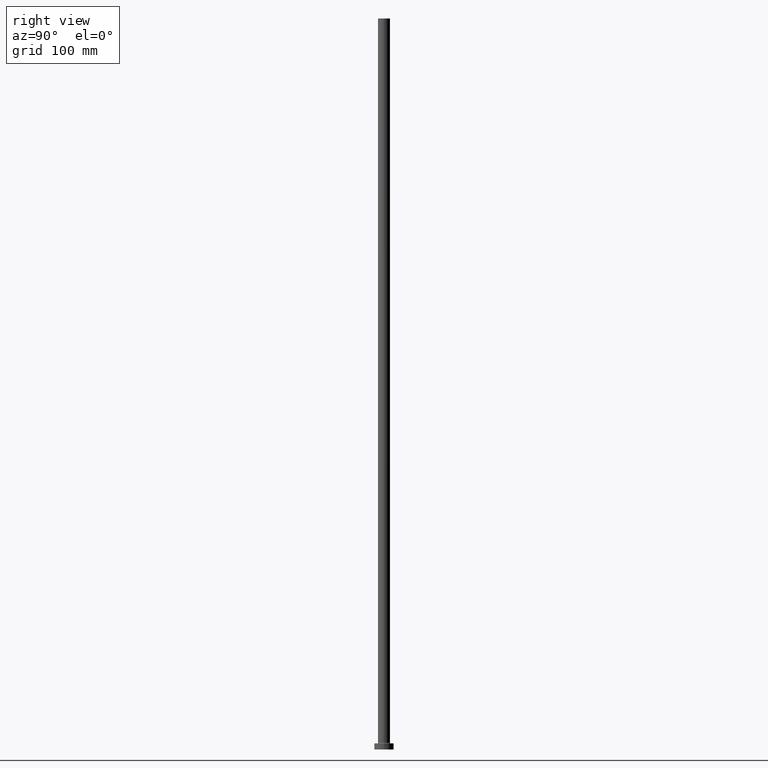
[diagram: clean part render]
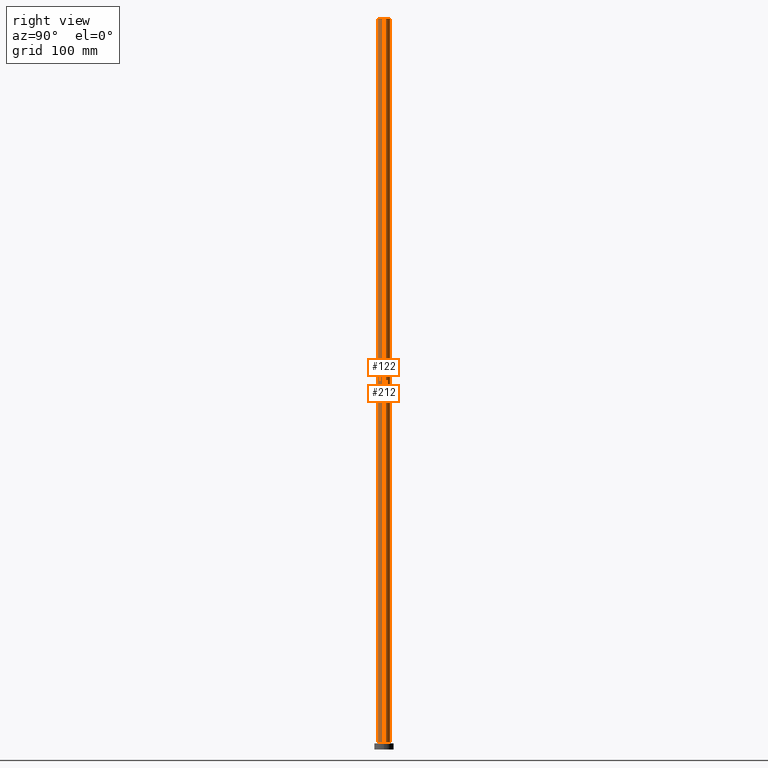
[diagram: same view with one multi-face feature highlighted, each face labeled with its STEP entity id]
A machine part, right view. The highlighted faces form ONE feature: a constant-radius fillet chain: 2 tangent blend faces with common blend radius 5 mm. The faces share edges in the B-rep.
Their STEP definitions:
[1] entity #212 (Cylinder):
#15 = DIRECTION ( 'NONE',  ( -1.000000000000000000, 0.000000000000000000, 0.000000000000000000 ) ) ;
#39 = CARTESIAN_POINT ( 'NONE',  ( 0.000000000000000000, 0.000000000000000000, 600.0000000000000000 ) ) ;
#41 = VERTEX_POINT ( 'NONE', #263 ) ;
#42 = LINE ( 'NONE', #180, #294 ) ;
#43 = LINE ( 'NONE', #432, #228 ) ;
#45 = EDGE_CURVE ( 'NONE', #41, #96, #170, .T. ) ;
#52 = CARTESIAN_POINT ( 'NONE',  ( 0.000000000000000000, 0.000000000000000000, 600.0000000000000000 ) ) ;
#63 = EDGE_LOOP ( 'NONE', ( #331, #343, #130, #255 ) ) ;
#81 = AXIS2_PLACEMENT_3D ( 'NONE', #39, #146, #425 ) ;
#88 = CYLINDRICAL_SURFACE ( 'NONE', #116, 5.000000000000000000 ) ;
#90 = EDGE_CURVE ( 'NONE', #207, #41, #43, .T. ) ;
#96 = VERTEX_POINT ( 'NONE', #297 ) ;
#116 = AXIS2_PLACEMENT_3D ( 'NONE', #52, #332, #15 ) ;
#125 = DIRECTION ( 'NONE',  ( 0.000000000000000000, 0.000000000000000000, 1.000000000000000000 ) ) ;
#130 = ORIENTED_EDGE ( 'NONE', *, *, #45, .T. ) ;
#146 = DIRECTION ( 'NONE',  ( 0.000000000000000000, 0.000000000000000000, 1.000000000000000000 ) ) ;
#158 = DIRECTION ( 'NONE',  ( -0.000000000000000000, -0.000000000000000000, -1.000000000000000000 ) ) ;
#170 = CIRCLE ( 'NONE', #346, 5.000000000000000000 ) ;
#180 = CARTESIAN_POINT ( 'NONE',  ( -5.000000000000000000, 0.000000000000000000, 600.0000000000000000 ) ) ;
#185 = CARTESIAN_POINT ( 'NONE',  ( 0.000000000000000000, 0.000000000000000000, 5.499999999999949374 ) ) ;
#207 = VERTEX_POINT ( 'NONE', #265 ) ;
#212 = ADVANCED_FACE ( 'NONE', ( #401 ), #88, .T. ) ;
#228 = VECTOR ( 'NONE', #158, 1000.000000000000000 ) ;
#255 = ORIENTED_EDGE ( 'NONE', *, *, #427, .F. ) ;
#260 = DIRECTION ( 'NONE',  ( 1.000000000000000000, 0.000000000000000000, 0.000000000000000000 ) ) ;
#263 = CARTESIAN_POINT ( 'NONE',  ( 5.000000000000000000, 6.123233995736766282E-16, 5.499999999999949374 ) ) ;
#265 = CARTESIAN_POINT ( 'NONE',  ( 5.000000000000000000, 6.123233995736766282E-16, 600.0000000000000000 ) ) ;
#268 = EDGE_CURVE ( 'NONE', #207, #339, #310, .T. ) ;
#294 = VECTOR ( 'NONE', #392, 1000.000000000000000 ) ;
#297 = CARTESIAN_POINT ( 'NONE',  ( -5.000000000000000000, 0.000000000000000000, 5.499999999999949374 ) ) ;
#310 = CIRCLE ( 'NONE', #81, 5.000000000000000000 ) ;
#331 = ORIENTED_EDGE ( 'NONE', *, *, #268, .F. ) ;
#332 = DIRECTION ( 'NONE',  ( -0.000000000000000000, -0.000000000000000000, -1.000000000000000000 ) ) ;
#339 = VERTEX_POINT ( 'NONE', #400 ) ;
#343 = ORIENTED_EDGE ( 'NONE', *, *, #90, .T. ) ;
#346 = AXIS2_PLACEMENT_3D ( 'NONE', #185, #125, #260 ) ;
#392 = DIRECTION ( 'NONE',  ( -0.000000000000000000, -0.000000000000000000, -1.000000000000000000 ) ) ;
#400 = CARTESIAN_POINT ( 'NONE',  ( -5.000000000000000000, 0.000000000000000000, 600.0000000000000000 ) ) ;
#401 = FACE_OUTER_BOUND ( 'NONE', #63, .T. ) ;
#425 = DIRECTION ( 'NONE',  ( 1.000000000000000000, 0.000000000000000000, 0.000000000000000000 ) ) ;
#427 = EDGE_CURVE ( 'NONE', #339, #96, #42, .T. ) ;
#432 = CARTESIAN_POINT ( 'NONE',  ( 5.000000000000000000, 6.123233995736766282E-16, 600.0000000000000000 ) ) ;
[2] entity #122 (Cylinder):
#17 = EDGE_CURVE ( 'NONE', #339, #207, #354, .T. ) ;
#32 = DIRECTION ( 'NONE',  ( -1.000000000000000000, 0.000000000000000000, 0.000000000000000000 ) ) ;
#41 = VERTEX_POINT ( 'NONE', #263 ) ;
#42 = LINE ( 'NONE', #180, #294 ) ;
#43 = LINE ( 'NONE', #432, #228 ) ;
#46 = AXIS2_PLACEMENT_3D ( 'NONE', #237, #213, #32 ) ;
#86 = EDGE_CURVE ( 'NONE', #96, #41, #406, .T. ) ;
#90 = EDGE_CURVE ( 'NONE', #207, #41, #43, .T. ) ;
#96 = VERTEX_POINT ( 'NONE', #297 ) ;
#102 = CARTESIAN_POINT ( 'NONE',  ( 0.000000000000000000, 0.000000000000000000, 600.0000000000000000 ) ) ;
#122 = ADVANCED_FACE ( 'NONE', ( #234 ), #451, .T. ) ;
#127 = AXIS2_PLACEMENT_3D ( 'NONE', #442, #304, #399 ) ;
#158 = DIRECTION ( 'NONE',  ( -0.000000000000000000, -0.000000000000000000, -1.000000000000000000 ) ) ;
#179 = ORIENTED_EDGE ( 'NONE', *, *, #90, .F. ) ;
#180 = CARTESIAN_POINT ( 'NONE',  ( -5.000000000000000000, 0.000000000000000000, 600.0000000000000000 ) ) ;
#201 = DIRECTION ( 'NONE',  ( 0.000000000000000000, 0.000000000000000000, 1.000000000000000000 ) ) ;
#207 = VERTEX_POINT ( 'NONE', #265 ) ;
#210 = ORIENTED_EDGE ( 'NONE', *, *, #17, .F. ) ;
#213 = DIRECTION ( 'NONE',  ( -0.000000000000000000, -0.000000000000000000, -1.000000000000000000 ) ) ;
#228 = VECTOR ( 'NONE', #158, 1000.000000000000000 ) ;
#234 = FACE_OUTER_BOUND ( 'NONE', #351, .T. ) ;
#236 = DIRECTION ( 'NONE',  ( 1.000000000000000000, 0.000000000000000000, 0.000000000000000000 ) ) ;
#237 = CARTESIAN_POINT ( 'NONE',  ( 0.000000000000000000, 0.000000000000000000, 600.0000000000000000 ) ) ;
#249 = ORIENTED_EDGE ( 'NONE', *, *, #86, .T. ) ;
#263 = CARTESIAN_POINT ( 'NONE',  ( 5.000000000000000000, 6.123233995736766282E-16, 5.499999999999949374 ) ) ;
#265 = CARTESIAN_POINT ( 'NONE',  ( 5.000000000000000000, 6.123233995736766282E-16, 600.0000000000000000 ) ) ;
#294 = VECTOR ( 'NONE', #392, 1000.000000000000000 ) ;
#297 = CARTESIAN_POINT ( 'NONE',  ( -5.000000000000000000, 0.000000000000000000, 5.499999999999949374 ) ) ;
#304 = DIRECTION ( 'NONE',  ( 0.000000000000000000, 0.000000000000000000, 1.000000000000000000 ) ) ;
#339 = VERTEX_POINT ( 'NONE', #400 ) ;
#351 = EDGE_LOOP ( 'NONE', ( #179, #210, #412, #249 ) ) ;
#354 = CIRCLE ( 'NONE', #389, 5.000000000000000000 ) ;
#389 = AXIS2_PLACEMENT_3D ( 'NONE', #102, #201, #236 ) ;
#392 = DIRECTION ( 'NONE',  ( -0.000000000000000000, -0.000000000000000000, -1.000000000000000000 ) ) ;
#399 = DIRECTION ( 'NONE',  ( 1.000000000000000000, 0.000000000000000000, 0.000000000000000000 ) ) ;
#400 = CARTESIAN_POINT ( 'NONE',  ( -5.000000000000000000, 0.000000000000000000, 600.0000000000000000 ) ) ;
#406 = CIRCLE ( 'NONE', #127, 5.000000000000000000 ) ;
#412 = ORIENTED_EDGE ( 'NONE', *, *, #427, .T. ) ;
#427 = EDGE_CURVE ( 'NONE', #339, #96, #42, .T. ) ;
#432 = CARTESIAN_POINT ( 'NONE',  ( 5.000000000000000000, 6.123233995736766282E-16, 600.0000000000000000 ) ) ;
#442 = CARTESIAN_POINT ( 'NONE',  ( 0.000000000000000000, 0.000000000000000000, 5.499999999999949374 ) ) ;
#451 = CYLINDRICAL_SURFACE ( 'NONE', #46, 5.000000000000000000 ) ;